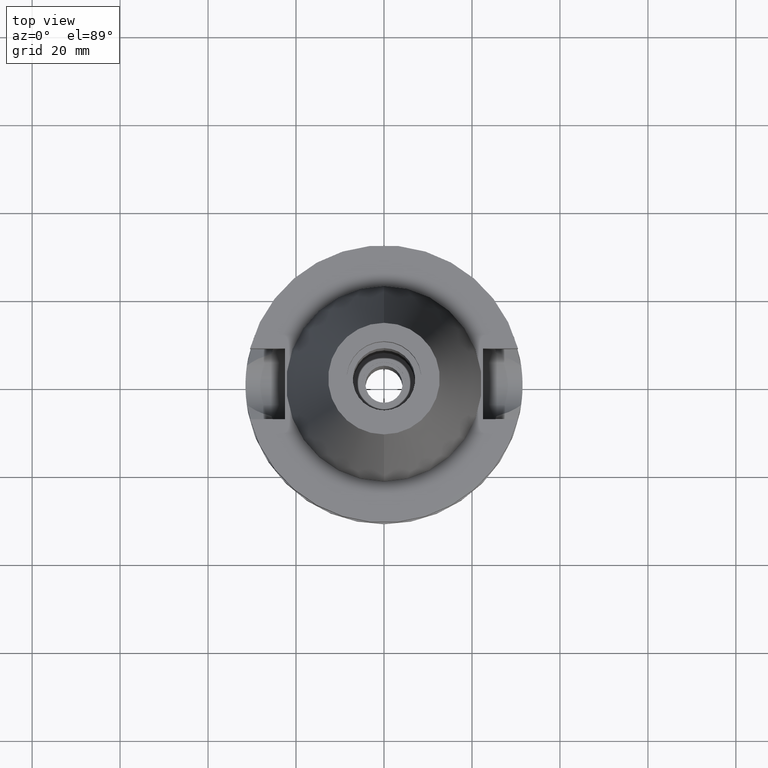
[diagram: clean part render]
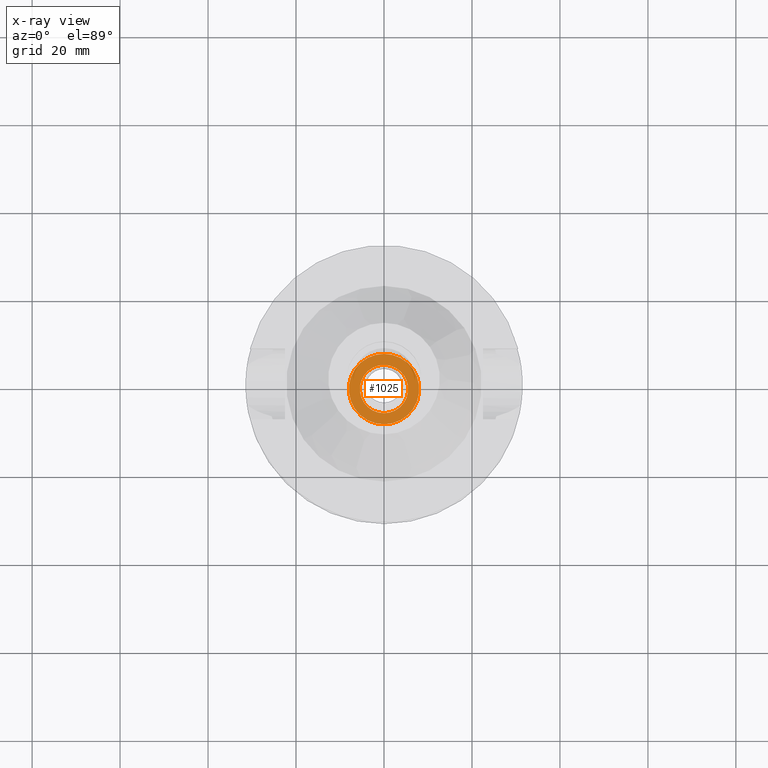
[diagram: x-ray — body ghosted, one internal face saturated and labeled with its STEP entity id]
A machine part, top view, then the same camera in x-ray: the body is ghosted and one INTERNAL B-rep face — a face not visible from any outside direction — is saturated and labeled: STEP entity #1025.
In plain terms, the highlighted planar face has unit normal (0, 0, -1).
Its self-contained STEP definition (entity closure, byte-faithful):
#38 = CIRCLE ( 'NONE', #2180, 8.000000000000000000 ) ;
#131 = ORIENTED_EDGE ( 'NONE', *, *, #1774, .F. ) ;
#214 = EDGE_CURVE ( 'NONE', #1534, #3392, #352, .T. ) ;
#253 = DIRECTION ( 'NONE',  ( 0.0000000000000000000, 0.0000000000000000000, 1.000000000000000000 ) ) ;
#254 = DIRECTION ( 'NONE',  ( 0.0000000000000000000, 1.000000000000000000, 0.0000000000000000000 ) ) ;
#352 = CIRCLE ( 'NONE', #2821, 8.000000000000000000 ) ;
#356 = CARTESIAN_POINT ( 'NONE',  ( 0.0000000000000000000, -5.500000000000000000, -7.799999999999999822 ) ) ;
#580 = EDGE_LOOP ( 'NONE', ( #2566, #2988 ) ) ;
#604 = CARTESIAN_POINT ( 'NONE',  ( 0.0000000000000000000, 8.000000000000000000, -7.799999999999999822 ) ) ;
#637 = DIRECTION ( 'NONE',  ( 0.0000000000000000000, -1.000000000000000000, 0.0000000000000000000 ) ) ;
#856 = CARTESIAN_POINT ( 'NONE',  ( 0.0000000000000000000, -8.000000000000000000, -7.799999999999999822 ) ) ;
#1025 = ADVANCED_FACE ( 'NONE', ( #3416, #2028 ), #2725, .F. ) ;
#1169 = AXIS2_PLACEMENT_3D ( 'NONE', #3036, #253, #2255 ) ;
#1534 = VERTEX_POINT ( 'NONE', #604 ) ;
#1543 = CARTESIAN_POINT ( 'NONE',  ( 0.0000000000000000000, 0.0000000000000000000, -7.799999999999999822 ) ) ;
#1594 = DIRECTION ( 'NONE',  ( 0.0000000000000000000, -1.000000000000000000, 0.0000000000000000000 ) ) ;
#1651 = CIRCLE ( 'NONE', #1169, 5.500000000000000000 ) ;
#1774 = EDGE_CURVE ( 'NONE', #2492, #3538, #2745, .T. ) ;
#2028 = FACE_BOUND ( 'NONE', #2135, .T. ) ;
#2039 = DIRECTION ( 'NONE',  ( 0.0000000000000000000, 0.0000000000000000000, -1.000000000000000000 ) ) ;
#2126 = DIRECTION ( 'NONE',  ( 0.0000000000000000000, 0.0000000000000000000, -1.000000000000000000 ) ) ;
#2135 = EDGE_LOOP ( 'NONE', ( #131, #3629 ) ) ;
#2180 = AXIS2_PLACEMENT_3D ( 'NONE', #2321, #2039, #637 ) ;
#2187 = DIRECTION ( 'NONE',  ( 0.0000000000000000000, 0.0000000000000000000, -1.000000000000000000 ) ) ;
#2227 = CARTESIAN_POINT ( 'NONE',  ( 0.0000000000000000000, 5.500000000000000000, -7.799999999999999822 ) ) ;
#2255 = DIRECTION ( 'NONE',  ( 0.0000000000000000000, -1.000000000000000000, 0.0000000000000000000 ) ) ;
#2321 = CARTESIAN_POINT ( 'NONE',  ( 0.0000000000000000000, 0.0000000000000000000, -7.799999999999999822 ) ) ;
#2341 = AXIS2_PLACEMENT_3D ( 'NONE', #2733, #3056, #254 ) ;
#2492 = VERTEX_POINT ( 'NONE', #2227 ) ;
#2509 = AXIS2_PLACEMENT_3D ( 'NONE', #1543, #2126, #1594 ) ;
#2566 = ORIENTED_EDGE ( 'NONE', *, *, #214, .F. ) ;
#2725 = PLANE ( 'NONE',  #2509 ) ;
#2733 = CARTESIAN_POINT ( 'NONE',  ( 0.0000000000000000000, 0.0000000000000000000, -7.799999999999999822 ) ) ;
#2745 = CIRCLE ( 'NONE', #2341, 5.500000000000000000 ) ;
#2821 = AXIS2_PLACEMENT_3D ( 'NONE', #3004, #2187, #3573 ) ;
#2988 = ORIENTED_EDGE ( 'NONE', *, *, #3087, .F. ) ;
#3004 = CARTESIAN_POINT ( 'NONE',  ( 0.0000000000000000000, 0.0000000000000000000, -7.799999999999999822 ) ) ;
#3036 = CARTESIAN_POINT ( 'NONE',  ( 0.0000000000000000000, 0.0000000000000000000, -7.799999999999999822 ) ) ;
#3056 = DIRECTION ( 'NONE',  ( 0.0000000000000000000, 0.0000000000000000000, 1.000000000000000000 ) ) ;
#3087 = EDGE_CURVE ( 'NONE', #3392, #1534, #38, .T. ) ;
#3392 = VERTEX_POINT ( 'NONE', #856 ) ;
#3416 = FACE_OUTER_BOUND ( 'NONE', #580, .T. ) ;
#3433 = EDGE_CURVE ( 'NONE', #3538, #2492, #1651, .T. ) ;
#3538 = VERTEX_POINT ( 'NONE', #356 ) ;
#3573 = DIRECTION ( 'NONE',  ( 0.0000000000000000000, 1.000000000000000000, 0.0000000000000000000 ) ) ;
#3629 = ORIENTED_EDGE ( 'NONE', *, *, #3433, .F. ) ;